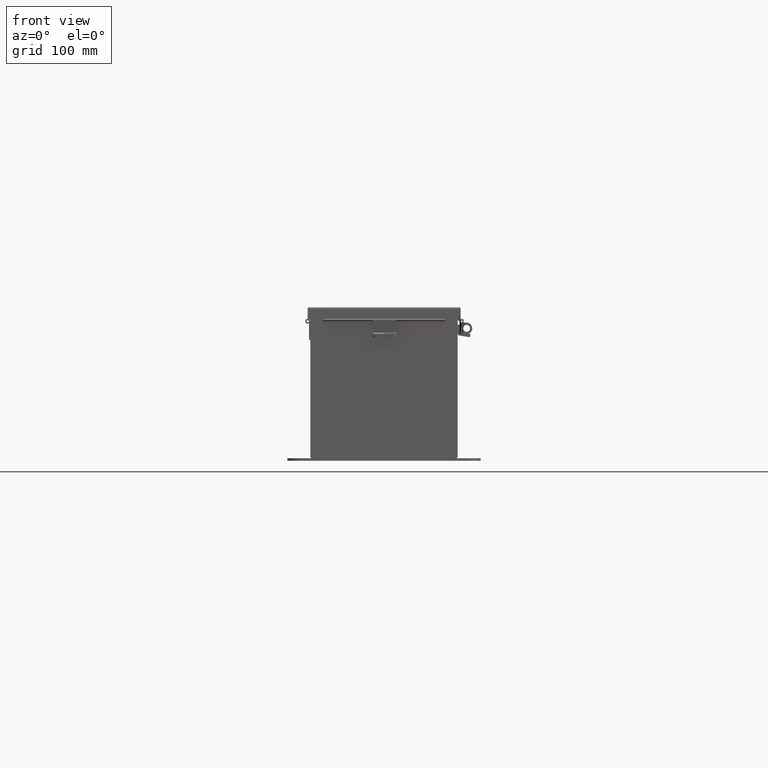
[diagram: clean part render]
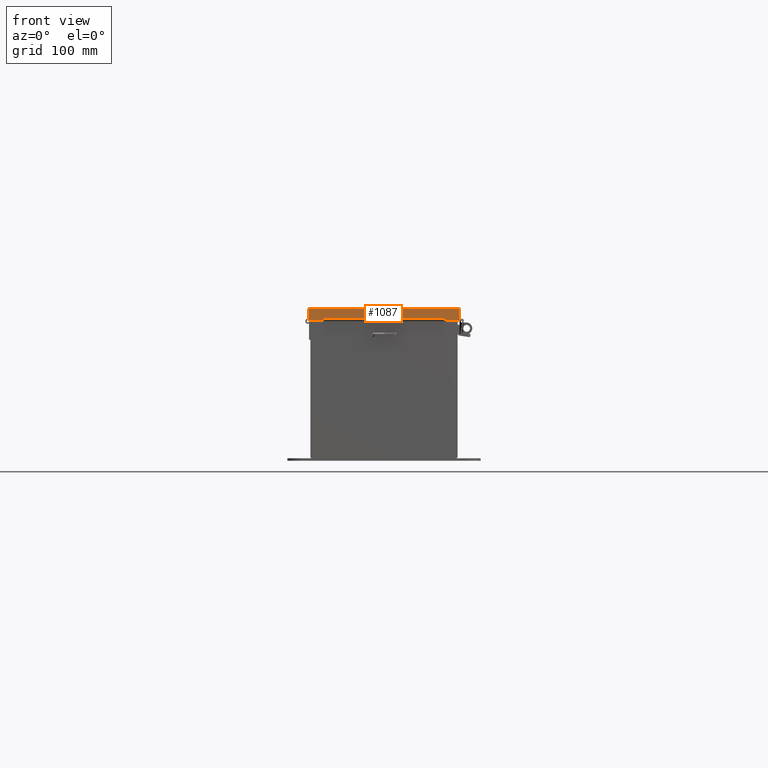
[diagram: same view with one face highlighted and labeled with its STEP entity id]
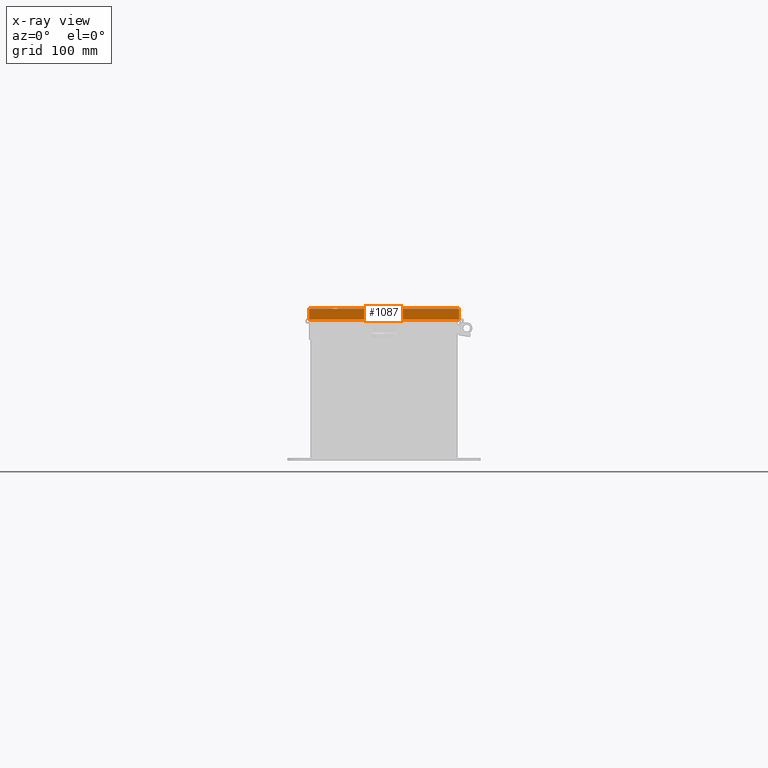
[diagram: x-ray of the same camera — body ghosted, the highlighted face saturated]
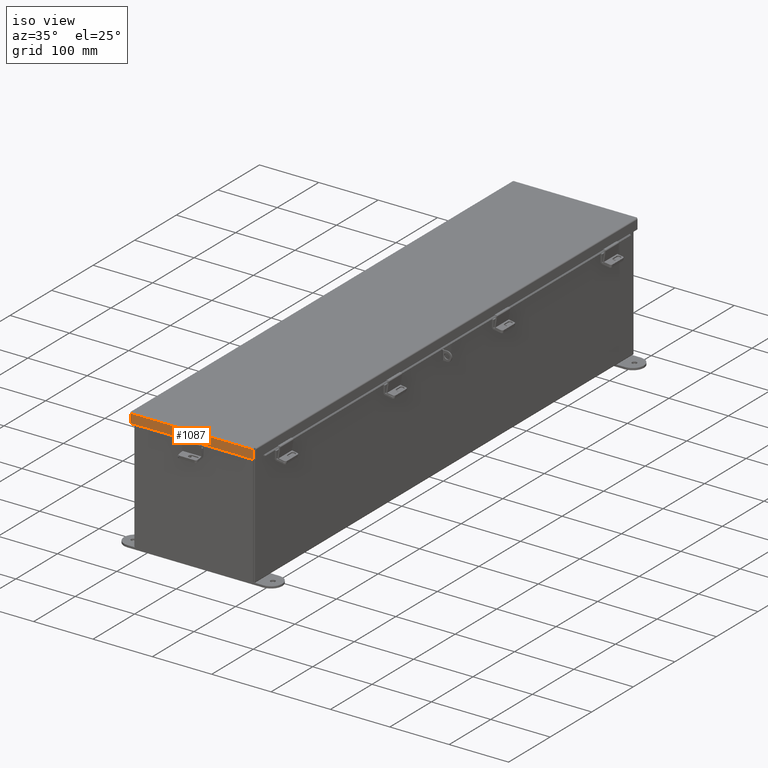
[diagram: same view with one face highlighted and labeled with its STEP entity id]
A machine part, front view. The second image highlights one B-rep face of the part: STEP entity #1087.
The next image is the same camera in x-ray: the body ghosted, the highlighted face saturated — about 0% of this face is hidden behind the body in this view.
A second angle (iso view) of the same face is appended — the face is thin or edge-on in the first view.
In plain terms, the highlighted planar face has unit normal (0, 1, -0).
Its self-contained STEP definition (entity closure, byte-faithful):
#273 = VERTEX_POINT ( 'NONE', #16997 ) ;
#421 = VECTOR ( 'NONE', #3862, 39.37007874015748100 ) ;
#1087 = ADVANCED_FACE ( 'NONE', ( #13652 ), #12170, .F. ) ;
#1225 = ORIENTED_EDGE ( 'NONE', *, *, #14638, .T. ) ;
#1472 = VERTEX_POINT ( 'NONE', #8826 ) ;
#1937 = ORIENTED_EDGE ( 'NONE', *, *, #11645, .F. ) ;
#2440 = CARTESIAN_POINT ( 'NONE',  ( 4.074478932188172900, -18.15624999999997200, 0.6123000000000005100 ) ) ;
#2966 = DIRECTION ( 'NONE',  ( -3.944304526105027500E-031, 1.401985044024304300E-013, 1.000000000000000000 ) ) ;
#3045 = DIRECTION ( 'NONE',  ( -3.944304526105027500E-031, -3.569293475308472500E-015, 1.000000000000000000 ) ) ;
#3151 = VERTEX_POINT ( 'NONE', #24698 ) ;
#3329 = VERTEX_POINT ( 'NONE', #16156 ) ;
#3434 = ORIENTED_EDGE ( 'NONE', *, *, #8818, .F. ) ;
#3451 = DIRECTION ( 'NONE',  ( -1.000000000000000000, 1.242988400220697300E-030, 8.216084191471028400E-018 ) ) ;
#3862 = DIRECTION ( 'NONE',  ( -1.000000000000000000, 1.266780317709705500E-030, -3.944304526105027500E-031 ) ) ;
#4641 = VECTOR ( 'NONE', #27619, 39.37007874015748100 ) ;
#5270 = CARTESIAN_POINT ( 'NONE',  ( 3.324478932188152900, -18.15624999999997900, 0.5967115427318804300 ) ) ;
#5379 = DIRECTION ( 'NONE',  ( -1.308325388199047600E-030, 1.000000000000000000, 3.569293475308472500E-015 ) ) ;
#5789 = CARTESIAN_POINT ( 'NONE',  ( -4.074478932188176500, -18.15624999999997200, 0.0000000000000000000 ) ) ;
#5982 = DIRECTION ( 'NONE',  ( -1.000000000000000000, 1.242988400220697300E-030, 8.216084191471028400E-018 ) ) ;
#6131 = CARTESIAN_POINT ( 'NONE',  ( -4.156250000000041700, -18.15624999999997200, 0.01300000000000010700 ) ) ;
#6867 = CARTESIAN_POINT ( 'NONE',  ( -4.074478932188176500, -18.15624999999997200, 0.01300000000000010700 ) ) ;
#7255 = VERTEX_POINT ( 'NONE', #2440 ) ;
#7463 = CARTESIAN_POINT ( 'NONE',  ( -4.074478932188176500, -18.15624999999997200, 0.6123000000000190500 ) ) ;
#7654 = EDGE_CURVE ( 'NONE', #1472, #8466, #12602, .T. ) ;
#8051 = DIRECTION ( 'NONE',  ( -3.944304526105027500E-031, -3.569293475308472500E-015, 1.000000000000000000 ) ) ;
#8392 = LINE ( 'NONE', #10536, #15251 ) ;
#8466 = VERTEX_POINT ( 'NONE', #6867 ) ;
#8818 = EDGE_CURVE ( 'NONE', #8466, #28043, #26972, .T. ) ;
#8826 = CARTESIAN_POINT ( 'NONE',  ( 4.074478932188172900, -18.15624999999997200, 0.01300000000000010700 ) ) ;
#8830 = VECTOR ( 'NONE', #3045, 39.37007874015748100 ) ;
#9165 = EDGE_CURVE ( 'NONE', #273, #3329, #10709, .T. ) ;
#9877 = CARTESIAN_POINT ( 'NONE',  ( 0.0000000000000000000, -18.15624999999997200, -6.447161265047661700E-014 ) ) ;
#10378 = EDGE_CURVE ( 'NONE', #1472, #7255, #21793, .T. ) ;
#10536 = CARTESIAN_POINT ( 'NONE',  ( -3.324478932188157400, -18.15624999999997500, 0.6122999999999994000 ) ) ;
#10709 = LINE ( 'NONE', #25313, #4641 ) ;
#11140 = ORIENTED_EDGE ( 'NONE', *, *, #15838, .F. ) ;
#11645 = EDGE_CURVE ( 'NONE', #3151, #273, #8392, .T. ) ;
#11885 = VERTEX_POINT ( 'NONE', #13620 ) ;
#12170 = PLANE ( 'NONE',  #20715 ) ;
#12602 = LINE ( 'NONE', #6131, #421 ) ;
#13620 = CARTESIAN_POINT ( 'NONE',  ( 3.324478932188152900, -18.15624999999997200, 0.6122999999999994000 ) ) ;
#13652 = FACE_OUTER_BOUND ( 'NONE', #21361, .T. ) ;
#14638 = EDGE_CURVE ( 'NONE', #7255, #11885, #21535, .T. ) ;
#14735 = LINE ( 'NONE', #19702, #25507 ) ;
#14853 = CARTESIAN_POINT ( 'NONE',  ( -1.387266559282633700E-017, -18.15624999999997200, 0.6123000000000005100 ) ) ;
#15251 = VECTOR ( 'NONE', #26611, 39.37007874015748100 ) ;
#15838 = EDGE_CURVE ( 'NONE', #3329, #11885, #17478, .T. ) ;
#16156 = CARTESIAN_POINT ( 'NONE',  ( 3.324478932188152900, -18.15624999999997200, 0.5967115427318804300 ) ) ;
#16508 = ORIENTED_EDGE ( 'NONE', *, *, #9165, .F. ) ;
#16976 = ORIENTED_EDGE ( 'NONE', *, *, #7654, .F. ) ;
#16997 = CARTESIAN_POINT ( 'NONE',  ( -3.324478932188155200, -18.15624999999997200, 0.5967115427318804300 ) ) ;
#17478 = LINE ( 'NONE', #5270, #22844 ) ;
#19008 = ORIENTED_EDGE ( 'NONE', *, *, #10378, .T. ) ;
#19702 = CARTESIAN_POINT ( 'NONE',  ( -1.387266559282633700E-017, -18.15624999999997200, 0.6123000000000005100 ) ) ;
#20715 = AXIS2_PLACEMENT_3D ( 'NONE', #9877, #5379, #21429 ) ;
#21361 = EDGE_LOOP ( 'NONE', ( #1937, #23914, #3434, #16976, #19008, #1225, #11140, #16508 ) ) ;
#21429 = DIRECTION ( 'NONE',  ( -3.944304526105027500E-031, -3.569293475308472500E-015, 1.000000000000000000 ) ) ;
#21535 = LINE ( 'NONE', #14853, #22241 ) ;
#21793 = LINE ( 'NONE', #23785, #8830 ) ;
#22241 = VECTOR ( 'NONE', #3451, 39.37007874015748100 ) ;
#22844 = VECTOR ( 'NONE', #2966, 39.37007874015748100 ) ;
#23785 = CARTESIAN_POINT ( 'NONE',  ( 4.074478932188172900, -18.15624999999997200, -6.447161265047661700E-014 ) ) ;
#23914 = ORIENTED_EDGE ( 'NONE', *, *, #28249, .T. ) ;
#24698 = CARTESIAN_POINT ( 'NONE',  ( -3.324478932188157400, -18.15624999999997200, 0.6122999999999994000 ) ) ;
#25313 = CARTESIAN_POINT ( 'NONE',  ( -3.324478932188157400, -18.15624999999997900, 0.5967115427318804300 ) ) ;
#25507 = VECTOR ( 'NONE', #5982, 39.37007874015748100 ) ;
#26253 = VECTOR ( 'NONE', #8051, 39.37007874015748100 ) ;
#26611 = DIRECTION ( 'NONE',  ( 1.401985044024331500E-013, -1.401985044024322700E-013, -1.000000000000000000 ) ) ;
#26972 = LINE ( 'NONE', #5789, #26253 ) ;
#27619 = DIRECTION ( 'NONE',  ( 1.000000000000000000, -1.242128414421549100E-030, 3.944304526105027500E-031 ) ) ;
#28043 = VERTEX_POINT ( 'NONE', #7463 ) ;
#28249 = EDGE_CURVE ( 'NONE', #3151, #28043, #14735, .T. ) ;